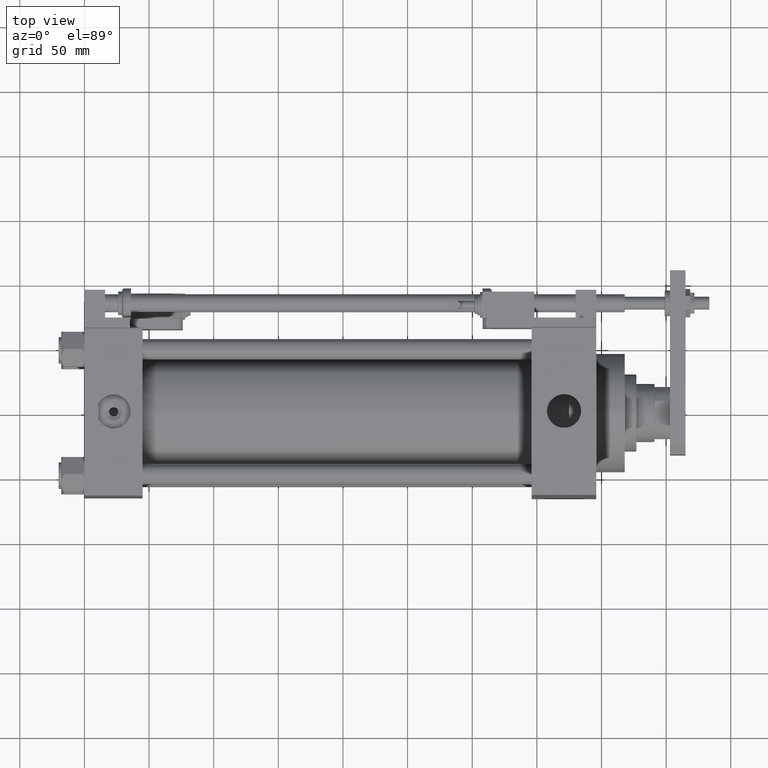
[diagram: clean part render]
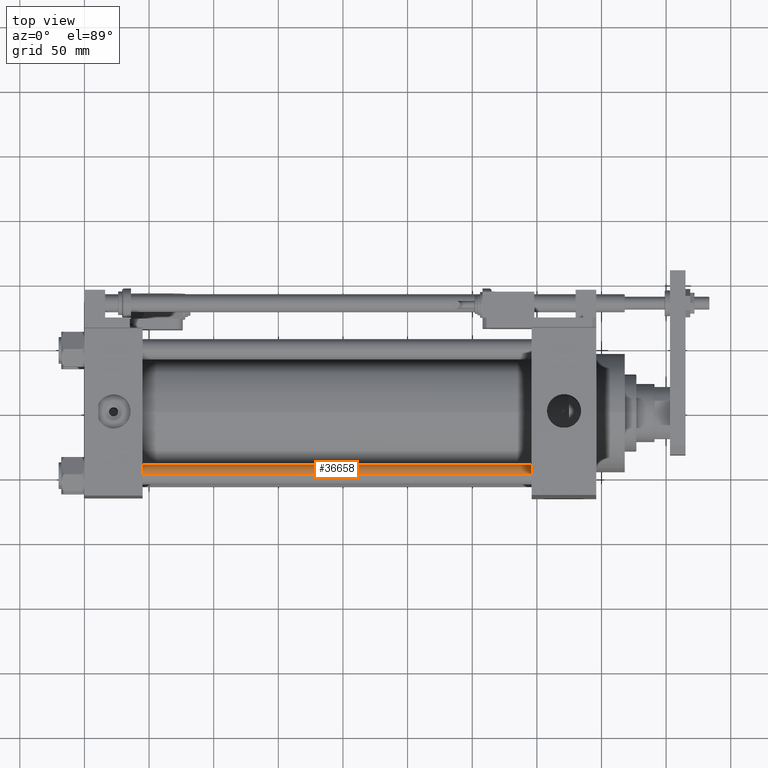
[diagram: same view with one face highlighted and labeled with its STEP entity id]
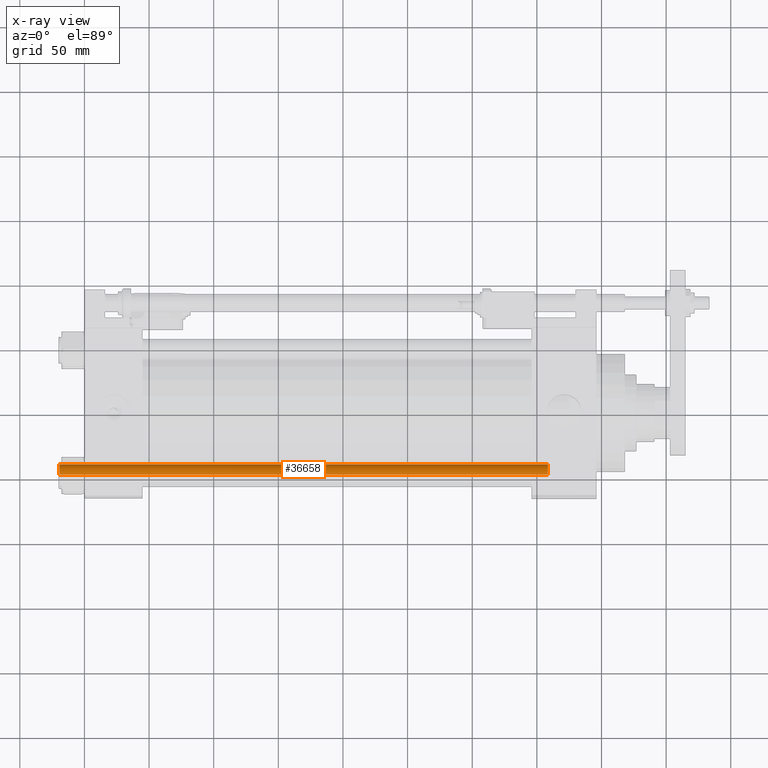
[diagram: x-ray of the same camera — body ghosted, the highlighted face saturated]
A machine part, top view. The second image highlights one B-rep face of the part: STEP entity #36658.
The next image is the same camera in x-ray: the body ghosted, the highlighted face saturated — about 0% of this face is hidden behind the body in this view.
In plain terms, the highlighted cylindrical surface (edge-blend (fillet) strip) has radius 8 mm, axis along (-1, 0, -0).
Its self-contained STEP definition (entity closure, byte-faithful):
#612 = FACE_OUTER_BOUND ( 'NONE', #44244, .T. ) ;
#1334 = CIRCLE ( 'NONE', #47069, 8.000000000000000000 ) ;
#2405 = ORIENTED_EDGE ( 'NONE', *, *, #10472, .T. ) ;
#3832 = VERTEX_POINT ( 'NONE', #7960 ) ;
#5388 = CYLINDRICAL_SURFACE ( 'NONE', #12227, 8.000000000000000000 ) ;
#6382 = ORIENTED_EDGE ( 'NONE', *, *, #32639, .T. ) ;
#7183 = VERTEX_POINT ( 'NONE', #22824 ) ;
#7884 = VERTEX_POINT ( 'NONE', #11996 ) ;
#7960 = CARTESIAN_POINT ( 'NONE',  ( 8.000000000000000000, 9.797174393178825657E-16, 378.4999999999999432 ) ) ;
#10472 = EDGE_CURVE ( 'NONE', #21036, #7183, #1334, .T. ) ;
#11665 = EDGE_CURVE ( 'NONE', #3832, #7183, #26823, .T. ) ;
#11996 = CARTESIAN_POINT ( 'NONE',  ( -8.000000000000000000, 0.000000000000000000, 378.4999999999999432 ) ) ;
#12227 = AXIS2_PLACEMENT_3D ( 'NONE', #30399, #39082, #35153 ) ;
#12415 = DIRECTION ( 'NONE',  ( -0.000000000000000000, -0.000000000000000000, -1.000000000000000000 ) ) ;
#15881 = DIRECTION ( 'NONE',  ( 0.000000000000000000, 0.000000000000000000, -1.000000000000000000 ) ) ;
#19348 = ORIENTED_EDGE ( 'NONE', *, *, #11665, .F. ) ;
#19923 = ORIENTED_EDGE ( 'NONE', *, *, #55304, .T. ) ;
#21036 = VERTEX_POINT ( 'NONE', #35512 ) ;
#22824 = CARTESIAN_POINT ( 'NONE',  ( 8.000000000000000000, 9.797174393178825657E-16, 0.4999999999998894218 ) ) ;
#26823 = LINE ( 'NONE', #43654, #30859 ) ;
#27037 = CIRCLE ( 'NONE', #44954, 8.000000000000000000 ) ;
#30399 = CARTESIAN_POINT ( 'NONE',  ( 0.000000000000000000, 0.000000000000000000, 379.0000000000000000 ) ) ;
#30859 = VECTOR ( 'NONE', #51014, 1000.000000000000000 ) ;
#32312 = DIRECTION ( 'NONE',  ( 1.000000000000000000, 0.000000000000000000, 0.000000000000000000 ) ) ;
#32639 = EDGE_CURVE ( 'NONE', #3832, #7884, #27037, .T. ) ;
#33015 = DIRECTION ( 'NONE',  ( 1.000000000000000000, 0.000000000000000000, 0.000000000000000000 ) ) ;
#33763 = LINE ( 'NONE', #50851, #35135 ) ;
#35135 = VECTOR ( 'NONE', #12415, 1000.000000000000000 ) ;
#35153 = DIRECTION ( 'NONE',  ( -1.000000000000000000, 0.000000000000000000, 0.000000000000000000 ) ) ;
#35512 = CARTESIAN_POINT ( 'NONE',  ( -8.000000000000000000, 0.000000000000000000, 0.4999999999998894218 ) ) ;
#35682 = CARTESIAN_POINT ( 'NONE',  ( 0.000000000000000000, 0.000000000000000000, 0.4999999999998894218 ) ) ;
#36658 = ADVANCED_FACE ( 'NONE', ( #612 ), #5388, .T. ) ;
#36932 = CARTESIAN_POINT ( 'NONE',  ( 0.000000000000000000, 0.000000000000000000, 378.4999999999999432 ) ) ;
#39082 = DIRECTION ( 'NONE',  ( -0.000000000000000000, -0.000000000000000000, -1.000000000000000000 ) ) ;
#43654 = CARTESIAN_POINT ( 'NONE',  ( 8.000000000000000000, 9.797174393178825657E-16, 379.0000000000000000 ) ) ;
#44244 = EDGE_LOOP ( 'NONE', ( #19348, #6382, #19923, #2405 ) ) ;
#44922 = DIRECTION ( 'NONE',  ( -0.000000000000000000, -0.000000000000000000, 1.000000000000000000 ) ) ;
#44954 = AXIS2_PLACEMENT_3D ( 'NONE', #36932, #15881, #33015 ) ;
#47069 = AXIS2_PLACEMENT_3D ( 'NONE', #35682, #44922, #32312 ) ;
#50851 = CARTESIAN_POINT ( 'NONE',  ( -8.000000000000000000, 0.000000000000000000, 379.0000000000000000 ) ) ;
#51014 = DIRECTION ( 'NONE',  ( -0.000000000000000000, -0.000000000000000000, -1.000000000000000000 ) ) ;
#55304 = EDGE_CURVE ( 'NONE', #7884, #21036, #33763, .T. ) ;